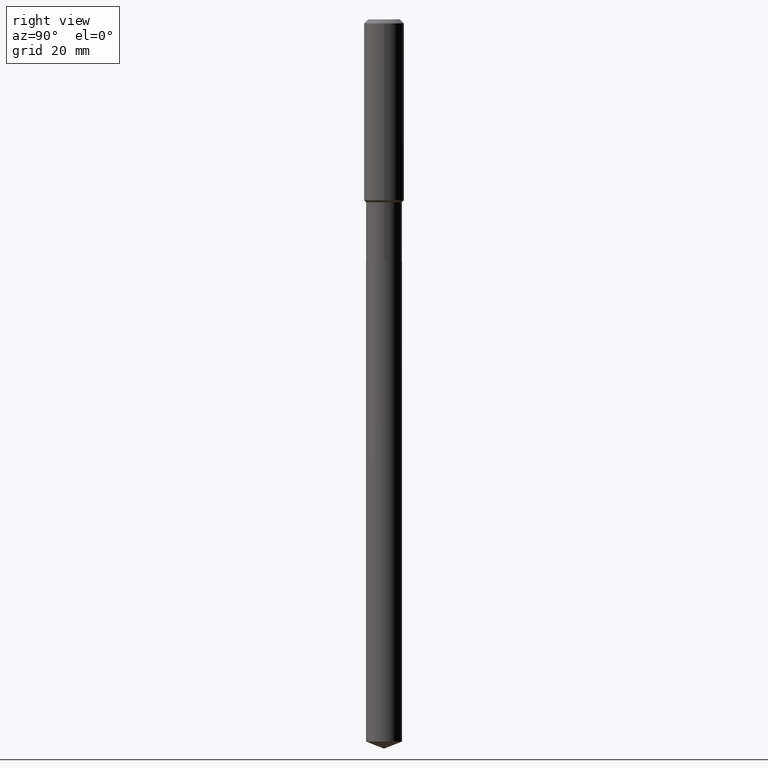
[diagram: clean part render]
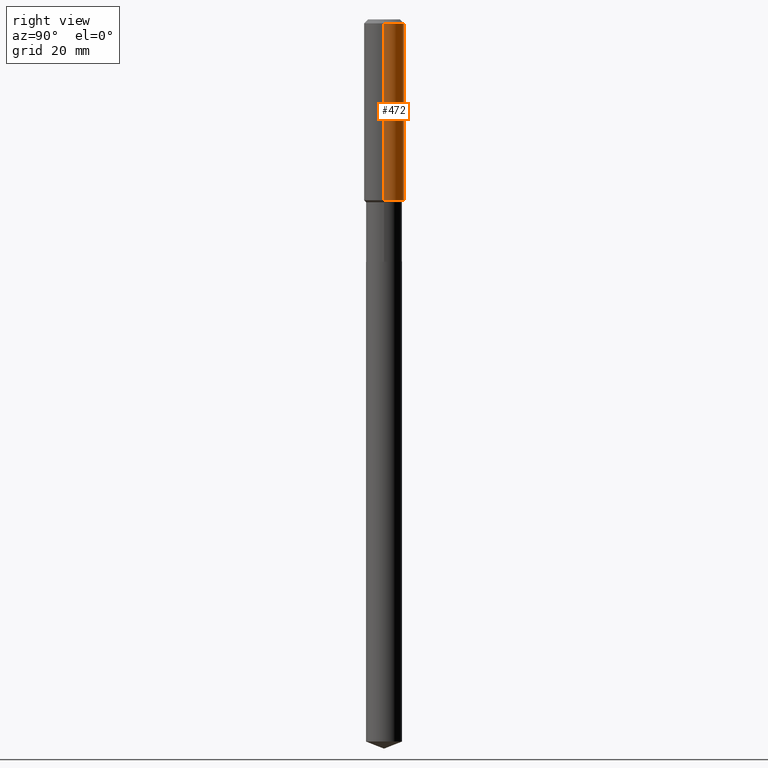
[diagram: same view with one face highlighted and labeled with its STEP entity id]
A machine part, right view. The second image highlights one B-rep face of the part: STEP entity #472.
In plain terms, the highlighted cylindrical surface (edge-blend (fillet) strip) has radius 5 mm, axis along (-0, 0, 1).
Its self-contained STEP definition (entity closure, byte-faithful):
#22 = CARTESIAN_POINT ( 'NONE',  ( -0.1968500000000002192, -4.806357260048276677E-15, -1.777199999999999225 ) ) ;
#28 = VECTOR ( 'NONE', #337, 39.37007874015748143 ) ;
#30 = VECTOR ( 'NONE', #111, 39.37007874015748143 ) ;
#53 = EDGE_CURVE ( 'NONE', #434, #385, #138, .T. ) ;
#59 = CIRCLE ( 'NONE', #224, 0.1968500000000000250 ) ;
#87 = FACE_OUTER_BOUND ( 'NONE', #346, .T. ) ;
#90 = CIRCLE ( 'NONE', #290, 0.1968500000000002192 ) ;
#97 = CARTESIAN_POINT ( 'NONE',  ( -0.1968500000000000250, -1.772556752507387433E-15, -0.03937000000000026589 ) ) ;
#110 = CARTESIAN_POINT ( 'NONE',  ( 0.1968500000000001082, -1.374596203102542397E-15, 9.598753983154305062E-30 ) ) ;
#111 = DIRECTION ( 'NONE',  ( -2.445468806185136877E-29, 3.491481338843145188E-15, 1.000000000000000000 ) ) ;
#118 = CARTESIAN_POINT ( 'NONE',  ( 4.346087162352223319E-29, -6.205060635392036043E-15, -1.777199999999999225 ) ) ;
#134 = DIRECTION ( 'NONE',  ( 1.000000000000000000, -6.982962677686265922E-15, 0.000000000000000000 ) ) ;
#138 = LINE ( 'NONE', #449, #30 ) ;
#169 = CARTESIAN_POINT ( 'NONE',  ( 9.627810689950948900E-31, -1.374596203102555561E-16, -0.03937000000000026589 ) ) ;
#186 = EDGE_CURVE ( 'NONE', #428, #434, #90, .T. ) ;
#224 = AXIS2_PLACEMENT_3D ( 'NONE', #169, #400, #134 ) ;
#225 = CYLINDRICAL_SURFACE ( 'NONE', #413, 0.1968500000000001082 ) ;
#265 = DIRECTION ( 'NONE',  ( 1.000000000000000000, -6.982962677686265922E-15, 0.000000000000000000 ) ) ;
#272 = CARTESIAN_POINT ( 'NONE',  ( 0.000000000000000000, 0.000000000000000000, 0.000000000000000000 ) ) ;
#275 = ORIENTED_EDGE ( 'NONE', *, *, #186, .T. ) ;
#279 = CARTESIAN_POINT ( 'NONE',  ( 0.1968500000000002192, -7.579656838494578440E-15, -1.777199999999999225 ) ) ;
#290 = AXIS2_PLACEMENT_3D ( 'NONE', #118, #429, #265 ) ;
#310 = ORIENTED_EDGE ( 'NONE', *, *, #392, .F. ) ;
#316 = CARTESIAN_POINT ( 'NONE',  ( 0.1968500000000000250, -1.512055823412797189E-15, -0.03937000000000026589 ) ) ;
#337 = DIRECTION ( 'NONE',  ( -2.445468806185136877E-29, 3.491481338843145188E-15, 1.000000000000000000 ) ) ;
#344 = DIRECTION ( 'NONE',  ( -2.445468806185136597E-29, 3.491481338843145583E-15, 1.000000000000000000 ) ) ;
#346 = EDGE_LOOP ( 'NONE', ( #275, #404, #310, #440 ) ) ;
#380 = DIRECTION ( 'NONE',  ( 1.000000000000000000, -6.982962677686266711E-15, 4.876176775795935793E-29 ) ) ;
#385 = VERTEX_POINT ( 'NONE', #97 ) ;
#392 = EDGE_CURVE ( 'NONE', #437, #385, #59, .T. ) ;
#400 = DIRECTION ( 'NONE',  ( -2.445468806185136597E-29, 3.491481338843145583E-15, 1.000000000000000000 ) ) ;
#404 = ORIENTED_EDGE ( 'NONE', *, *, #53, .T. ) ;
#413 = AXIS2_PLACEMENT_3D ( 'NONE', #272, #344, #380 ) ;
#418 = LINE ( 'NONE', #110, #28 ) ;
#428 = VERTEX_POINT ( 'NONE', #279 ) ;
#429 = DIRECTION ( 'NONE',  ( -2.445468806185136597E-29, 3.491481338843145583E-15, 1.000000000000000000 ) ) ;
#434 = VERTEX_POINT ( 'NONE', #22 ) ;
#437 = VERTEX_POINT ( 'NONE', #316 ) ;
#440 = ORIENTED_EDGE ( 'NONE', *, *, #450, .F. ) ;
#449 = CARTESIAN_POINT ( 'NONE',  ( -0.1968500000000001082, 1.398703375343757985E-15, -9.682923725166787881E-30 ) ) ;
#450 = EDGE_CURVE ( 'NONE', #428, #437, #418, .T. ) ;
#472 = ADVANCED_FACE ( 'NONE', ( #87 ), #225, .T. ) ;